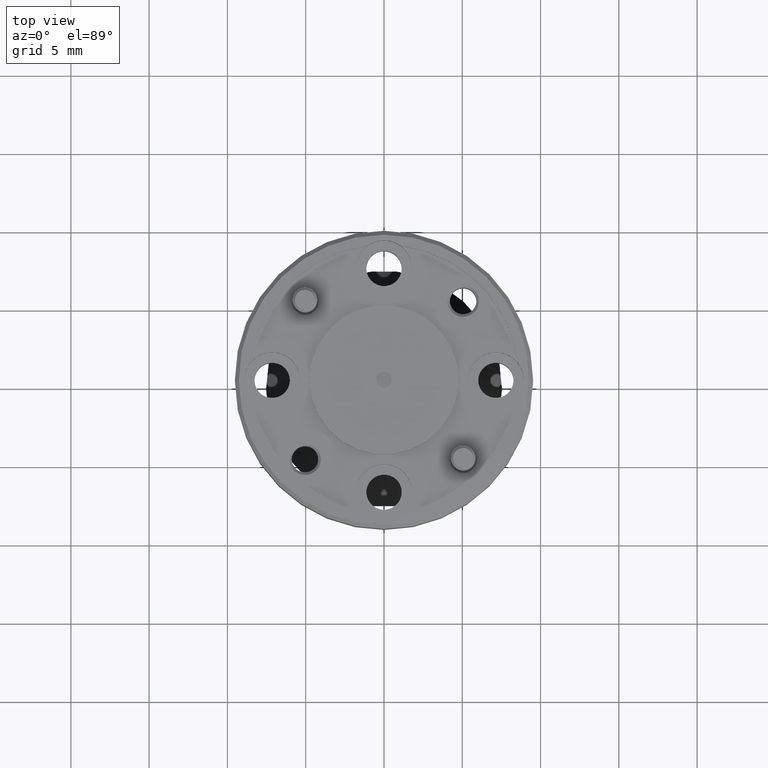
[diagram: clean part render]
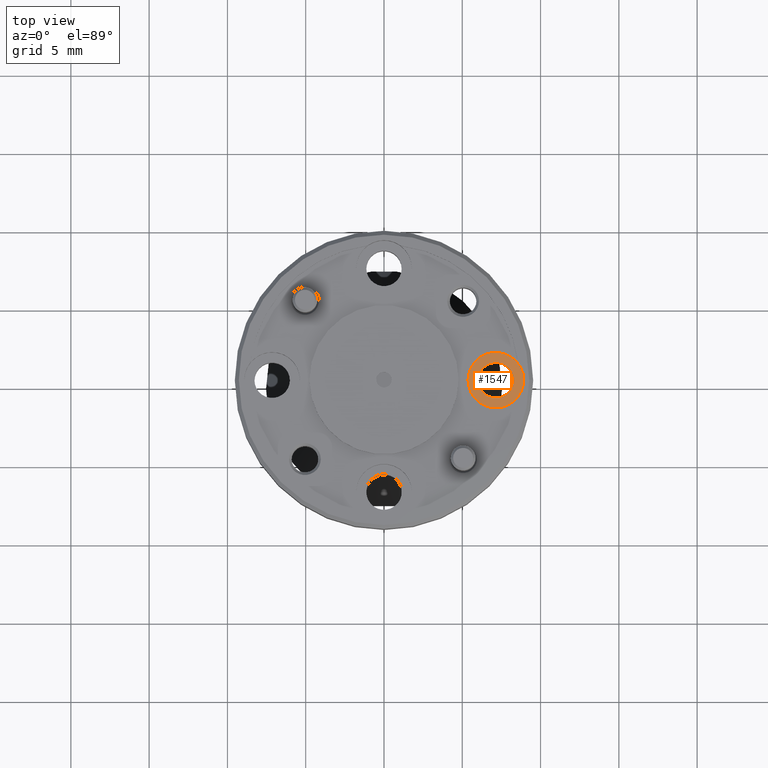
[diagram: same view with one face highlighted and labeled with its STEP entity id]
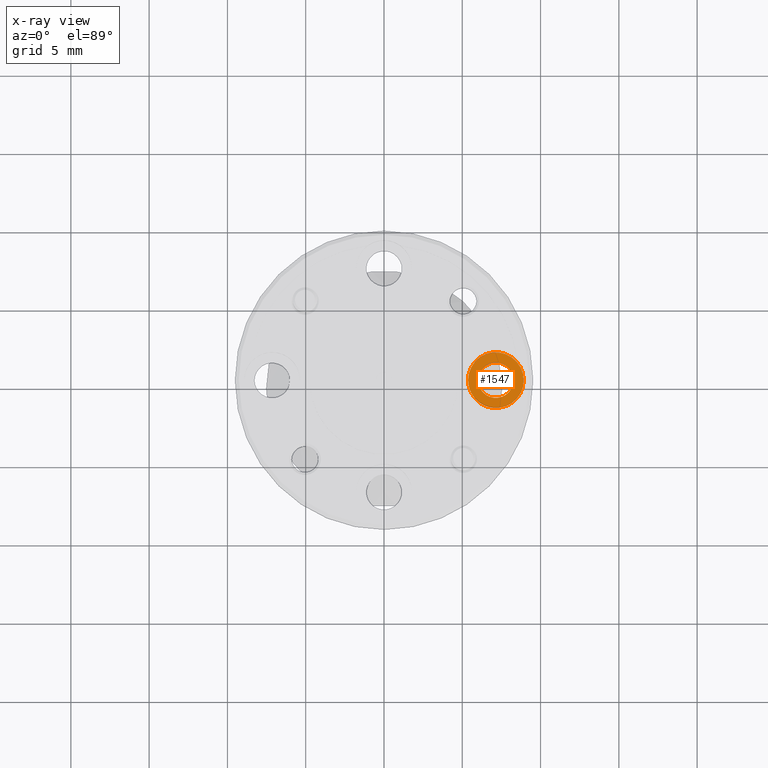
[diagram: x-ray of the same camera — body ghosted, the highlighted face saturated]
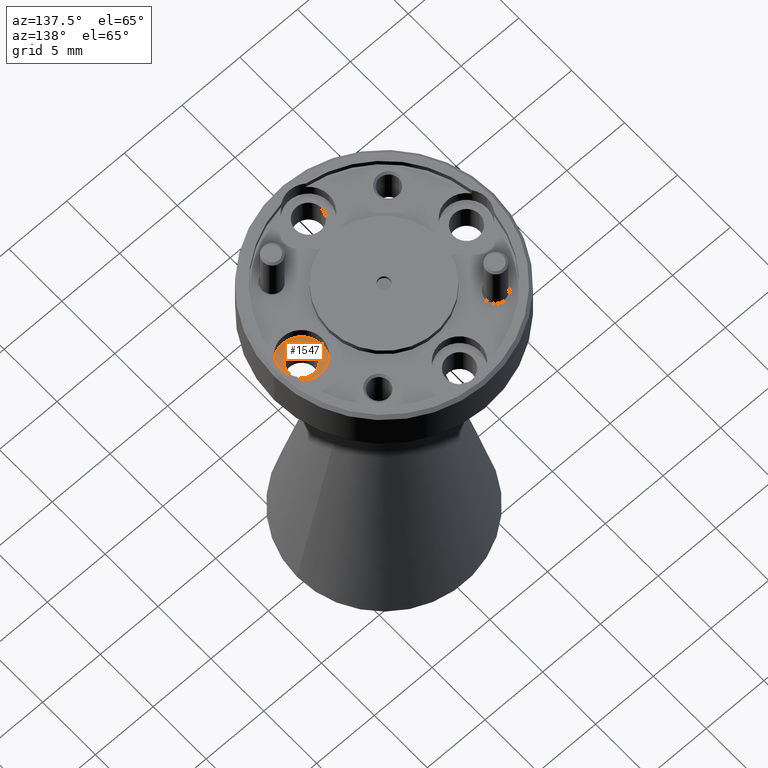
[diagram: same view with one face highlighted and labeled with its STEP entity id]
A machine part, top view. The second image highlights one B-rep face of the part: STEP entity #1547.
The next image is the same camera in x-ray: the body ghosted, the highlighted face saturated — about 0% of this face is hidden behind the body in this view.
A second angle (auxiliary view) of the same face is appended — the face is thin or edge-on in the first view.
In plain terms, the highlighted planar face has unit normal (0, 0, 1).
Its self-contained STEP definition (entity closure, byte-faithful):
#67 = CARTESIAN_POINT ( 'NONE',  ( 0.2812500000000000555, 0.000000000000000000, -0.05999999999999999778 ) ) ;
#70 = AXIS2_PLACEMENT_3D ( 'NONE', #1721, #126, #810 ) ;
#77 = AXIS2_PLACEMENT_3D ( 'NONE', #2302, #134, #893 ) ;
#87 = EDGE_CURVE ( 'NONE', #2299, #1404, #1996, .T. ) ;
#126 = DIRECTION ( 'NONE',  ( 0.000000000000000000, 0.000000000000000000, 1.000000000000000000 ) ) ;
#134 = DIRECTION ( 'NONE',  ( 0.000000000000000000, 0.000000000000000000, 1.000000000000000000 ) ) ;
#146 = CIRCLE ( 'NONE', #70, 0.07000000000000000666 ) ;
#147 = FACE_BOUND ( 'NONE', #2130, .T. ) ;
#198 = EDGE_LOOP ( 'NONE', ( #2152, #1138 ) ) ;
#256 = AXIS2_PLACEMENT_3D ( 'NONE', #786, #1710, #421 ) ;
#421 = DIRECTION ( 'NONE',  ( 1.000000000000000000, 0.000000000000000000, 0.000000000000000000 ) ) ;
#441 = CARTESIAN_POINT ( 'NONE',  ( 0.2112500000000000211, 8.572527594031465794E-18, -0.05999999999999999778 ) ) ;
#498 = DIRECTION ( 'NONE',  ( 1.000000000000000000, 0.000000000000000000, 0.000000000000000000 ) ) ;
#501 = ORIENTED_EDGE ( 'NONE', *, *, #87, .F. ) ;
#533 = CARTESIAN_POINT ( 'NONE',  ( 0.2367500000000000715, 5.449678256205716638E-18, -0.05999999999999999778 ) ) ;
#541 = ORIENTED_EDGE ( 'NONE', *, *, #2137, .F. ) ;
#550 = VERTEX_POINT ( 'NONE', #441 ) ;
#717 = PLANE ( 'NONE',  #77 ) ;
#786 = CARTESIAN_POINT ( 'NONE',  ( 0.2812500000000000555, 0.000000000000000000, -0.05999999999999999778 ) ) ;
#810 = DIRECTION ( 'NONE',  ( 1.000000000000000000, 0.000000000000000000, 0.000000000000000000 ) ) ;
#893 = DIRECTION ( 'NONE',  ( 1.000000000000000000, 0.000000000000000000, -0.000000000000000000 ) ) ;
#910 = CIRCLE ( 'NONE', #1598, 0.04449999999999996320 ) ;
#1020 = VERTEX_POINT ( 'NONE', #1827 ) ;
#1069 = EDGE_CURVE ( 'NONE', #1020, #550, #146, .T. ) ;
#1138 = ORIENTED_EDGE ( 'NONE', *, *, #2236, .T. ) ;
#1156 = DIRECTION ( 'NONE',  ( 0.000000000000000000, 0.000000000000000000, 1.000000000000000000 ) ) ;
#1211 = DIRECTION ( 'NONE',  ( 0.000000000000000000, 0.000000000000000000, 1.000000000000000000 ) ) ;
#1363 = CARTESIAN_POINT ( 'NONE',  ( 0.3257499999999999840, 0.000000000000000000, -0.05999999999999999778 ) ) ;
#1404 = VERTEX_POINT ( 'NONE', #1363 ) ;
#1437 = DIRECTION ( 'NONE',  ( 1.000000000000000000, 0.000000000000000000, 0.000000000000000000 ) ) ;
#1547 = ADVANCED_FACE ( 'NONE', ( #147, #1574 ), #717, .T. ) ;
#1574 = FACE_OUTER_BOUND ( 'NONE', #198, .T. ) ;
#1598 = AXIS2_PLACEMENT_3D ( 'NONE', #1777, #1211, #498 ) ;
#1710 = DIRECTION ( 'NONE',  ( 0.000000000000000000, 0.000000000000000000, 1.000000000000000000 ) ) ;
#1721 = CARTESIAN_POINT ( 'NONE',  ( 0.2812500000000000555, 0.000000000000000000, -0.05999999999999999778 ) ) ;
#1777 = CARTESIAN_POINT ( 'NONE',  ( 0.2812500000000000555, 0.000000000000000000, -0.05999999999999999778 ) ) ;
#1827 = CARTESIAN_POINT ( 'NONE',  ( 0.3512500000000000622, 0.000000000000000000, -0.05999999999999999778 ) ) ;
#1974 = CIRCLE ( 'NONE', #2169, 0.07000000000000000666 ) ;
#1996 = CIRCLE ( 'NONE', #256, 0.04449999999999996320 ) ;
#2130 = EDGE_LOOP ( 'NONE', ( #541, #501 ) ) ;
#2137 = EDGE_CURVE ( 'NONE', #1404, #2299, #910, .T. ) ;
#2152 = ORIENTED_EDGE ( 'NONE', *, *, #1069, .T. ) ;
#2169 = AXIS2_PLACEMENT_3D ( 'NONE', #67, #1156, #1437 ) ;
#2236 = EDGE_CURVE ( 'NONE', #550, #1020, #1974, .T. ) ;
#2299 = VERTEX_POINT ( 'NONE', #533 ) ;
#2302 = CARTESIAN_POINT ( 'NONE',  ( 0.2812500000000000555, 0.000000000000000000, -0.05999999999999999778 ) ) ;